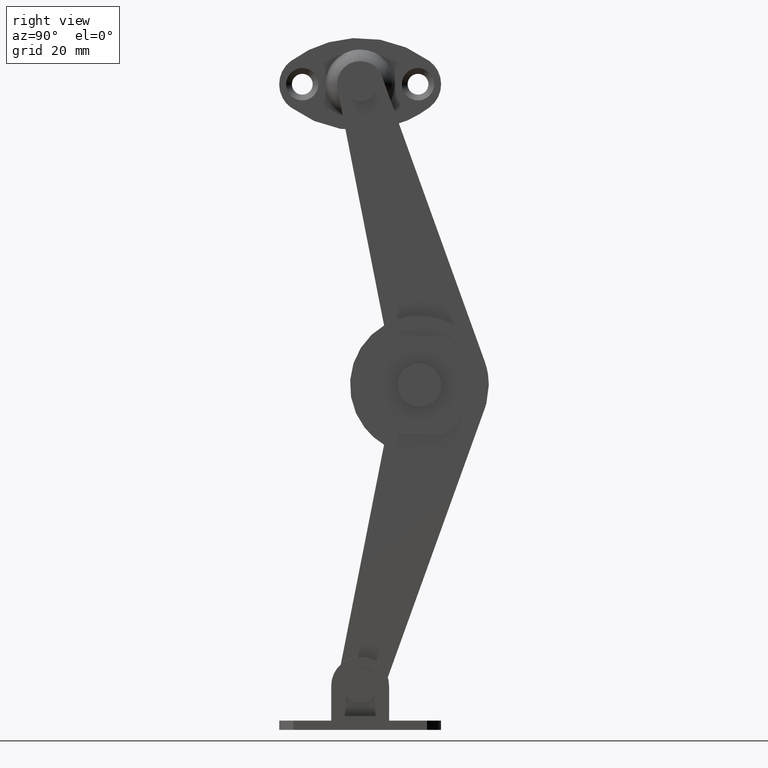
[diagram: clean part render]
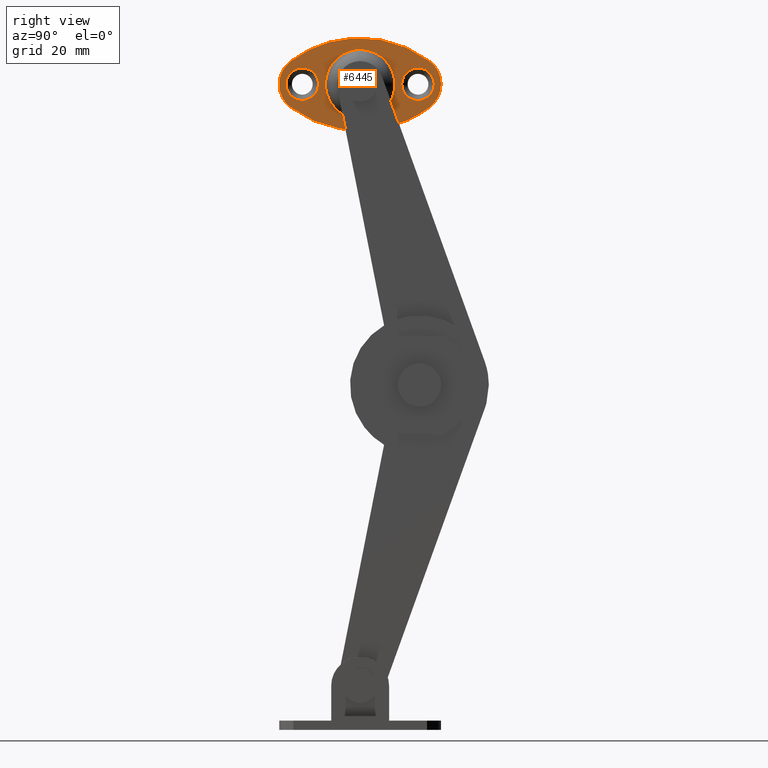
[diagram: same view with one face highlighted and labeled with its STEP entity id]
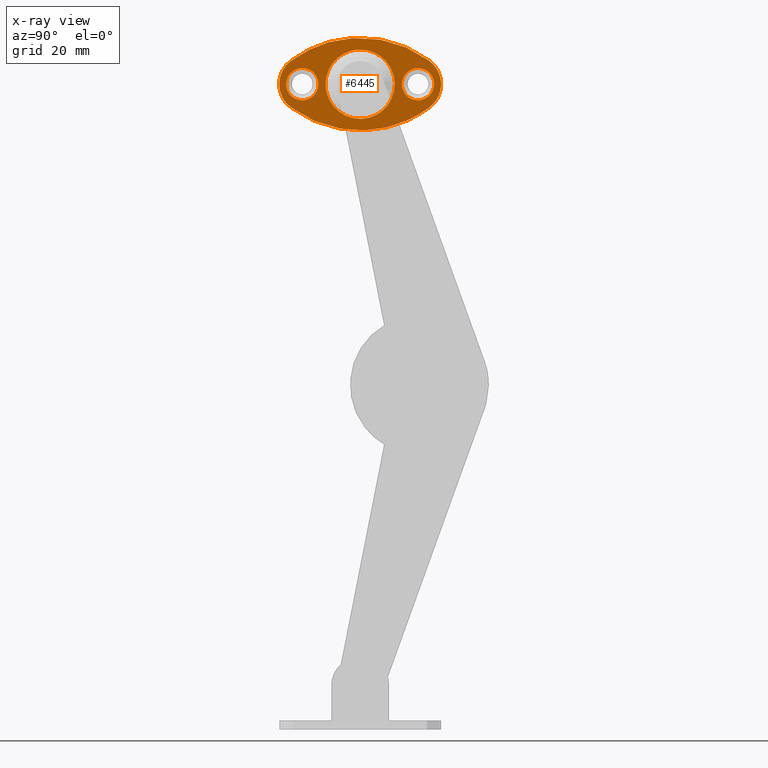
[diagram: x-ray of the same camera — body ghosted, the highlighted face saturated]
A machine part, right view. The second image highlights one B-rep face of the part: STEP entity #6445.
The next image is the same camera in x-ray: the body ghosted, the highlighted face saturated — about 0% of this face is hidden behind the body in this view.
In plain terms, the highlighted face is a freeform B-spline surface patch.
Its self-contained STEP definition (entity closure, byte-faithful):
#4993=CARTESIAN_POINT('',(1.0,10.0,54.799999952317393));
#4994=VERTEX_POINT('',#4993);
#4995=CARTESIAN_POINT('',(0.999999729882660,12.006622107316380,53.952808980272778));
#4996=VERTEX_POINT('',#4995);
#4997=CARTESIAN_POINT('',(1.0,10.0,54.799999952317393));
#4998=CARTESIAN_POINT('',(0.999999965491784,10.256351383295341,54.800089009134318));
#4999=CARTESIAN_POINT('',(0.999999905895884,10.699071718472890,54.738749488145260));
#5000=CARTESIAN_POINT('',(0.999999812000376,11.396593825598480,54.464598641916901));
#5001=CARTESIAN_POINT('',(0.999999758310290,11.795441601950960,54.170061526499438));
#5002=CARTESIAN_POINT('',(0.999999729882660,12.006622107316380,53.952808980272778));
#5003=B_SPLINE_CURVE_WITH_KNOTS('',3,(#4997,#4998,#4999,#5000,#5001,#5002),.UNSPECIFIED.,.F.,.U.,(4,1,1,4),(0.000000033201354,0.769054566016998,1.328343071309611,2.237225403814344),.UNSPECIFIED.);
#5004=EDGE_CURVE('',#4994,#4996,#5003,.T.);
#5006=CARTESIAN_POINT('',(1.0,7.200000047684549,52.000002161737832));
#5007=VERTEX_POINT('',#5006);
#5008=CARTESIAN_POINT('',(1.0,7.200000047684549,52.000002161737832));
#5009=CARTESIAN_POINT('',(1.000000000000001,7.199813732101285,52.297824287974983));
#5010=CARTESIAN_POINT('',(0.999999999999999,7.273828091471584,52.755849531651663));
#5011=CARTESIAN_POINT('',(1.000000000000002,7.536550549190006,53.368704649480648));
#5012=CARTESIAN_POINT('',(1.0,7.849461397124184,53.824812894777182));
#5013=CARTESIAN_POINT('',(1.000000000000000,8.266239377213303,54.221603788594862));
#5014=CARTESIAN_POINT('',(0.999999999999996,8.694073725410227,54.492505232388517));
#5015=CARTESIAN_POINT('',(1.000000000000006,9.267052818998709,54.729871628683831));
#5016=CARTESIAN_POINT('',(0.999999999999995,9.702178055609000,54.800187978241233));
#5017=CARTESIAN_POINT('',(1.0,10.0,54.799999952317393));
#5018=B_SPLINE_CURVE_WITH_KNOTS('',3,(#5008,#5009,#5010,#5011,#5012,#5013,#5014,#5015,#5016,#5017),.UNSPECIFIED.,.F.,.U.,(4,1,1,1,1,1,1,4),(0.000000114808993,0.893405426043538,1.374484031042865,1.993025678736508,2.542756001269111,3.092575548014516,3.504932693660825,4.398338790815406),.UNSPECIFIED.);
#5019=EDGE_CURVE('',#5007,#4994,#5018,.T.);
#5021=CARTESIAN_POINT('',(1.0,10.0,49.200000047684817));
#5022=VERTEX_POINT('',#5021);
#5023=CARTESIAN_POINT('',(1.0,10.0,49.200000047684817));
#5024=CARTESIAN_POINT('',(1.0,9.633411977620982,49.199613423755423));
#5025=CARTESIAN_POINT('',(1.0,9.061035451577819,49.314105610786832));
#5026=CARTESIAN_POINT('',(1.000000000000000,8.435151471635736,49.658770486710367));
#5027=CARTESIAN_POINT('',(1.000000000000000,7.991232511961409,50.023035415262463));
#5028=CARTESIAN_POINT('',(1.0,7.639847687652701,50.451211501812963));
#5029=CARTESIAN_POINT('',(1.000000000000002,7.298271605136465,51.129713467380860));
#5030=CARTESIAN_POINT('',(0.999999999999995,7.199684697126517,51.656333569963117));
#5031=CARTESIAN_POINT('',(1.0,7.200000047684549,52.000002161737832));
#5032=B_SPLINE_CURVE_WITH_KNOTS('',3,(#5023,#5024,#5025,#5026,#5027,#5028,#5029,#5030,#5031),.UNSPECIFIED.,.F.,.U.,(4,1,1,1,1,1,4),(0.000000111835281,1.099585657167975,1.718130212328457,2.130458768806154,2.817672066700567,3.367483413613675,4.398341227657427),.UNSPECIFIED.);
#5033=EDGE_CURVE('',#5022,#5007,#5032,.T.);
#5035=CARTESIAN_POINT('',(1.000000269188763,12.064377103311120,50.108346905306448));
#5036=VERTEX_POINT('',#5035);
#5037=CARTESIAN_POINT('',(1.000000269188763,12.064377103311120,50.108346905306448));
#5038=CARTESIAN_POINT('',(1.000000241515706,11.852155669213470,49.876408165705129));
#5039=CARTESIAN_POINT('',(1.000000188461522,11.445289346396789,49.560727242085058));
#5040=CARTESIAN_POINT('',(1.000000094583465,10.725349525722059,49.265981524277308));
#5041=CARTESIAN_POINT('',(1.000000034685003,10.265995220408779,49.199893179701739));
#5042=CARTESIAN_POINT('',(1.0,10.0,49.200000047684817));
#5043=B_SPLINE_CURVE_WITH_KNOTS('',3,(#5037,#5038,#5039,#5040,#5041,#5042),.UNSPECIFIED.,.F.,.U.,(4,1,1,4),(0.000000039804902,0.943060332312562,1.523378704162258,2.321353100420000),.UNSPECIFIED.);
#5044=EDGE_CURVE('',#5036,#5022,#5043,.T.);
#5124=CARTESIAN_POINT('',(1.0,12.799999952315449,51.999997838264370));
#5125=VERTEX_POINT('',#5124);
#5126=CARTESIAN_POINT('',(0.999999729882660,12.006622107316380,53.952808980272778));
#5127=CARTESIAN_POINT('',(0.999999758881369,12.210821435374539,53.743162949602713));
#5128=CARTESIAN_POINT('',(0.999999818111430,12.513087585151840,53.314959627809323));
#5129=CARTESIAN_POINT('',(0.999999912815762,12.753392748559641,52.630295401476843));
#5130=CARTESIAN_POINT('',(0.999999971975829,12.800028078475179,52.202598312295812));
#5131=CARTESIAN_POINT('',(1.0,12.799999952315449,51.999997838264370));
#5132=B_SPLINE_CURVE_WITH_KNOTS('',3,(#5126,#5127,#5128,#5129,#5130,#5131),.UNSPECIFIED.,.F.,.U.,(4,1,1,4),(0.000000044936330,0.877968733131726,1.553301260825916,2.161116228894698),.UNSPECIFIED.);
#5133=EDGE_CURVE('',#4996,#5125,#5132,.T.);
#5155=CARTESIAN_POINT('',(1.0,12.799999952315449,51.999997838264370));
#5156=CARTESIAN_POINT('',(1.000000046185221,12.800215393119570,51.675443633176933));
#5157=CARTESIAN_POINT('',(1.000000144676949,12.678234256935580,50.983319648376288));
#5158=CARTESIAN_POINT('',(1.000000230634516,12.313191777251870,50.379276303755539));
#5159=CARTESIAN_POINT('',(1.000000269188763,12.064377103311120,50.108346905306448));
#5160=B_SPLINE_CURVE_WITH_KNOTS('',3,(#5155,#5156,#5157,#5158,#5159),.UNSPECIFIED.,.F.,.U.,(4,1,4),(0.000000036915672,0.973596183959582,2.076986401531397),.UNSPECIFIED.);
#5161=EDGE_CURVE('',#5125,#5036,#5160,.T.);
#5192=CARTESIAN_POINT('',(1.0,-10.0,54.799999952317393));
#5193=VERTEX_POINT('',#5192);
#5194=CARTESIAN_POINT('',(0.999999729882660,-7.993377892683615,53.952808980272778));
#5195=VERTEX_POINT('',#5194);
#5196=CARTESIAN_POINT('',(1.0,-10.0,54.799999952317393));
#5197=CARTESIAN_POINT('',(0.999999965491397,-9.743645753518518,54.800092475108443));
#5198=CARTESIAN_POINT('',(0.999999905896046,-9.300929471926887,54.738747800241633));
#5199=CARTESIAN_POINT('',(0.999999812001733,-8.603416271029991,54.464585162882280));
#5200=CARTESIAN_POINT('',(0.999999758308385,-8.204544249009057,54.170078799438841));
#5201=CARTESIAN_POINT('',(0.999999729882660,-7.993377892683615,53.952808980272778));
#5202=B_SPLINE_CURVE_WITH_KNOTS('',3,(#5196,#5197,#5198,#5199,#5200,#5201),.UNSPECIFIED.,.F.,.U.,(4,1,1,4),(0.000000033200785,0.769054566016562,1.328343071309361,2.237225403814346),.UNSPECIFIED.);
#5203=EDGE_CURVE('',#5193,#5195,#5202,.T.);
#5205=CARTESIAN_POINT('',(1.0,-12.799999952315449,52.000002161737832));
#5206=VERTEX_POINT('',#5205);
#5207=CARTESIAN_POINT('',(1.0,-12.799999952315449,52.000002161737832));
#5208=CARTESIAN_POINT('',(1.0,-12.800383615412359,52.366588509371773));
#5209=CARTESIAN_POINT('',(1.000000000000000,-12.685899456023890,52.938968361343193));
#5210=CARTESIAN_POINT('',(1.0,-12.341213138925680,53.564830145417140));
#5211=CARTESIAN_POINT('',(1.000000000000003,-11.918770228803201,54.079913143245250));
#5212=CARTESIAN_POINT('',(0.999999999999996,-11.395988821615930,54.467591368362207));
#5213=CARTESIAN_POINT('',(1.000000000000003,-10.687168230448030,54.740807635182733));
#5214=CARTESIAN_POINT('',(0.999999999999997,-10.251989341167191,54.800085576396469));
#5215=CARTESIAN_POINT('',(1.0,-10.0,54.799999952317393));
#5216=B_SPLINE_CURVE_WITH_KNOTS('',3,(#5207,#5208,#5209,#5210,#5211,#5212,#5213,#5214,#5215),.UNSPECIFIED.,.F.,.U.,(4,1,1,1,1,1,4),(0.000000114802290,1.099585050436312,1.718129262531388,2.130457594273934,3.092575548012642,3.642375830379818,4.398338790815513),.UNSPECIFIED.);
#5217=EDGE_CURVE('',#5206,#5193,#5216,.T.);
#5219=CARTESIAN_POINT('',(1.0,-10.0,49.200000047684817));
#5220=VERTEX_POINT('',#5219);
#5221=CARTESIAN_POINT('',(1.0,-10.0,49.200000047684817));
#5222=CARTESIAN_POINT('',(1.0,-10.297806505196080,49.199839132909759));
#5223=CARTESIAN_POINT('',(1.0,-10.824601101163189,49.284857860034641));
#5224=CARTESIAN_POINT('',(1.000000000000000,-11.471349940911360,49.590839155363533));
#5225=CARTESIAN_POINT('',(1.000000000000001,-12.052181906098941,50.043912910477303));
#5226=CARTESIAN_POINT('',(1.000000000000003,-12.467605931238610,50.604002178778821));
#5227=CARTESIAN_POINT('',(0.999999999999998,-12.740806366055160,51.312834247379463));
#5228=CARTESIAN_POINT('',(1.0,-12.800085235442520,51.748012782083698));
#5229=CARTESIAN_POINT('',(1.0,-12.799999952315449,52.000002161737832));
#5230=B_SPLINE_CURVE_WITH_KNOTS('',3,(#5221,#5222,#5223,#5224,#5225,#5226,#5227,#5228,#5229),.UNSPECIFIED.,.F.,.U.,(4,1,1,1,1,1,4),(0.000000111833795,0.893405918399436,1.580670332862152,2.130458768805262,3.092577260842618,3.642377849415184,4.398341227657443),.UNSPECIFIED.);
#5231=EDGE_CURVE('',#5220,#5206,#5230,.T.);
#5233=CARTESIAN_POINT('',(1.000000269188762,-7.935622896688879,50.108346905306448));
#5234=VERTEX_POINT('',#5233);
#5235=CARTESIAN_POINT('',(1.000000269188762,-7.935622896688879,50.108346905306448));
#5236=CARTESIAN_POINT('',(1.000000241515562,-8.147845422857543,49.876406716039050));
#5237=CARTESIAN_POINT('',(1.000000188461730,-8.554709062317436,49.560728461653817));
#5238=CARTESIAN_POINT('',(1.000000094583277,-9.274651908446421,49.265980369599511));
#5239=CARTESIAN_POINT('',(1.000000034685065,-9.734004321335432,49.199893231637290));
#5240=CARTESIAN_POINT('',(1.0,-10.0,49.200000047684817));
#5241=B_SPLINE_CURVE_WITH_KNOTS('',3,(#5235,#5236,#5237,#5238,#5239,#5240),.UNSPECIFIED.,.F.,.U.,(4,1,1,4),(0.000000039805514,0.943060332313149,1.523378704162653,2.321353100419961),.UNSPECIFIED.);
#5242=EDGE_CURVE('',#5234,#5220,#5241,.T.);
#5319=CARTESIAN_POINT('',(1.0,-7.200000047684548,51.999997838264377));
#5320=VERTEX_POINT('',#5319);
#5321=CARTESIAN_POINT('',(0.999999729882660,-7.993377892683615,53.952808980272778));
#5322=CARTESIAN_POINT('',(0.999999754423022,-7.820613818175894,53.775394526892249));
#5323=CARTESIAN_POINT('',(0.999999797291736,-7.590448194288380,53.465475486672638));
#5324=CARTESIAN_POINT('',(0.999999887926865,-7.286586559107685,52.810229435336737));
#5325=CARTESIAN_POINT('',(0.999999953284957,-7.199698716946488,52.337723787513951));
#5326=CARTESIAN_POINT('',(1.0,-7.200000047684548,51.999997838264377));
#5327=B_SPLINE_CURVE_WITH_KNOTS('',3,(#5321,#5322,#5323,#5324,#5325,#5326),.UNSPECIFIED.,.F.,.U.,(4,1,1,4),(0.000000044934469,0.742892614533713,1.148083143996637,2.161116228894692),.UNSPECIFIED.);
#5328=EDGE_CURVE('',#5195,#5320,#5327,.T.);
#5350=CARTESIAN_POINT('',(1.0,-7.200000047684548,51.999997838264377));
#5351=CARTESIAN_POINT('',(1.000000046185123,-7.199784299275146,51.675444313130313));
#5352=CARTESIAN_POINT('',(1.000000144677052,-7.321766679799279,50.983318938778957));
#5353=CARTESIAN_POINT('',(1.000000230634461,-7.686807744445328,50.379276670580147));
#5354=CARTESIAN_POINT('',(1.000000269188762,-7.935622896688879,50.108346905306448));
#5355=B_SPLINE_CURVE_WITH_KNOTS('',3,(#5350,#5351,#5352,#5353,#5354),.UNSPECIFIED.,.F.,.U.,(4,1,4),(0.000000036915338,0.973596183959523,2.076986401531408),.UNSPECIFIED.);
#5356=EDGE_CURVE('',#5320,#5234,#5355,.T.);
#6115=CARTESIAN_POINT('',(0.999999999999972,-5.999999999999809,52.000001514960211));
#6116=VERTEX_POINT('',#6115);
#6117=CARTESIAN_POINT('',(0.999999999999972,0.0,58.000000000001101));
#6118=VERTEX_POINT('',#6117);
#6119=CARTESIAN_POINT('',(0.999999999999972,-5.999999999999809,52.000001514960211));
#6120=CARTESIAN_POINT('',(0.999999999999974,-6.000343152366956,52.638190480595867));
#6121=CARTESIAN_POINT('',(0.999999999999972,-5.837869394285058,53.644217421497522));
#6122=CARTESIAN_POINT('',(0.999999999999972,-5.236979789602057,55.022497996128642));
#6123=CARTESIAN_POINT('',(0.999999999999973,-4.425858333207565,56.144904047948721));
#6124=CARTESIAN_POINT('',(0.999999999999968,-3.302805568624171,57.078094730361038));
#6125=CARTESIAN_POINT('',(0.999999999999988,-2.215370432423190,57.608709168560033));
#6126=CARTESIAN_POINT('',(0.999999999999909,-1.128970918957071,57.923740002544768));
#6127=CARTESIAN_POINT('',(1.000000000000063,-0.441791650375527,58.000075284019893));
#6128=CARTESIAN_POINT('',(0.999999999999972,0.0,58.000000000001101));
#6129=B_SPLINE_CURVE_WITH_KNOTS('',3,(#6119,#6120,#6121,#6122,#6123,#6124,#6125,#6126,#6127,#6128),.UNSPECIFIED.,.F.,.U.,(4,1,1,1,1,1,1,4),(0.000000141837093,1.914418379020531,3.018902503477506,4.491526945265907,6.037777634609078,7.363159680453876,8.099476798630702,9.424836243400998),.UNSPECIFIED.);
#6130=EDGE_CURVE('',#6116,#6118,#6129,.T.);
#6132=CARTESIAN_POINT('',(0.999999999999972,0.0,46.000000000001101));
#6133=VERTEX_POINT('',#6132);
#6134=CARTESIAN_POINT('',(0.999999999999972,0.0,46.000000000001101));
#6135=CARTESIAN_POINT('',(0.999999999999972,-0.319056636371326,45.999989664231727));
#6136=CARTESIAN_POINT('',(0.999999999999973,-1.030830939264542,46.056865104362352));
#6137=CARTESIAN_POINT('',(0.999999999999972,-2.008581115117666,46.314578408832872));
#6138=CARTESIAN_POINT('',(0.999999999999972,-2.970718407904738,46.755293016315562));
#6139=CARTESIAN_POINT('',(0.999999999999974,-3.909612188118139,47.390893812997753));
#6140=CARTESIAN_POINT('',(0.999999999999972,-4.749869795622704,48.262707265061849));
#6141=CARTESIAN_POINT('',(0.999999999999973,-5.402762215392508,49.307950231327133));
#6142=CARTESIAN_POINT('',(0.999999999999972,-5.873215367617747,50.527468417454330));
#6143=CARTESIAN_POINT('',(0.999999999999972,-6.000181861464442,51.460026585596829));
#6144=CARTESIAN_POINT('',(0.999999999999972,-5.999999999999809,52.000001514960211));
#6145=B_SPLINE_CURVE_WITH_KNOTS('',3,(#6134,#6135,#6136,#6137,#6138,#6139,#6140,#6141,#6142,#6143,#6144),.UNSPECIFIED.,.F.,.U.,(4,1,1,1,1,1,1,1,4),(0.000000141337527,0.957179876773781,2.135315001357613,3.018903050273585,4.123401551765872,5.522336582041319,6.626835407690157,7.804960623305535,9.424837951123516),.UNSPECIFIED.);
#6146=EDGE_CURVE('',#6133,#6116,#6145,.T.);
#6148=CARTESIAN_POINT('',(0.999999999999972,5.999999999999808,51.999998485042042));
#6149=VERTEX_POINT('',#6148);
#6150=CARTESIAN_POINT('',(0.999999999999972,5.999999999999808,51.999998485042042));
#6151=CARTESIAN_POINT('',(0.999999999999973,6.000391279871470,51.361794542272101));
#6152=CARTESIAN_POINT('',(0.999999999999970,5.861613098250833,50.503030548177108));
#6153=CARTESIAN_POINT('',(0.999999999999974,5.367326440276737,49.244612673363960));
#6154=CARTESIAN_POINT('',(0.999999999999970,4.796554107785431,48.318290788536807));
#6155=CARTESIAN_POINT('',(0.999999999999973,3.992528812810899,47.484279278020338));
#6156=CARTESIAN_POINT('',(0.999999999999971,3.103026018562772,46.824537191201287));
#6157=CARTESIAN_POINT('',(0.999999999999977,1.815965908525832,46.196154669052412));
#6158=CARTESIAN_POINT('',(0.999999999999967,0.687284740148552,45.999538923250121));
#6159=CARTESIAN_POINT('',(0.999999999999972,0.0,46.000000000001101));
#6160=B_SPLINE_CURVE_WITH_KNOTS('',3,(#6150,#6151,#6152,#6153,#6154,#6155,#6156,#6157,#6158,#6159),.UNSPECIFIED.,.F.,.U.,(4,1,1,1,1,1,1,4),(0.000000141890233,1.914418379062577,2.577105607706663,4.049737069521163,5.154205069482948,6.037777634627760,7.363159680465028,9.424836243400817),.UNSPECIFIED.);
#6161=EDGE_CURVE('',#6149,#6133,#6160,.T.);
#6163=CARTESIAN_POINT('',(0.999999999999972,0.0,58.000000000001101));
#6164=CARTESIAN_POINT('',(0.999999999999982,0.539983049815428,58.000190266085887));
#6165=CARTESIAN_POINT('',(0.999999999999965,1.349804135858053,57.889880658563897));
#6166=CARTESIAN_POINT('',(0.999999999999979,2.510431734930756,57.482609927089591));
#6167=CARTESIAN_POINT('',(0.999999999999967,3.544699357456961,56.905186835796172));
#6168=CARTESIAN_POINT('',(0.999999999999975,4.442472755226326,56.091418317945113));
#6169=CARTESIAN_POINT('',(0.999999999999966,5.175492498287698,55.103026122921243));
#6170=CARTESIAN_POINT('',(0.999999999999966,5.608718370765851,54.215376790775871));
#6171=CARTESIAN_POINT('',(0.999999999999970,5.923741178420666,53.128969407136182));
#6172=CARTESIAN_POINT('',(0.999999999999969,6.000074635949011,52.441790115228791));
#6173=CARTESIAN_POINT('',(0.999999999999972,5.999999999999808,51.999998485042042));
#6174=B_SPLINE_CURVE_WITH_KNOTS('',3,(#6163,#6164,#6165,#6166,#6167,#6168,#6169,#6170,#6171,#6172,#6173),.UNSPECIFIED.,.F.,.U.,(4,1,1,1,1,1,1,1,4),(0.000000141347895,1.619878093975062,2.429842759999850,3.681602614127336,5.154206005520796,6.037778727408057,7.363161015051376,8.099478265515733,9.424837951123482),.UNSPECIFIED.);
#6175=EDGE_CURVE('',#6118,#6149,#6174,.T.);
#6200=CARTESIAN_POINT('',(1.0,-12.000000000008040,48.000000000007212));
#6201=VERTEX_POINT('',#6200);
#6202=CARTESIAN_POINT('',(1.0,12.000000000008260,48.000000000007212));
#6203=VERTEX_POINT('',#6202);
#6204=CARTESIAN_POINT('',(1.0,-12.000000000008040,48.000000000007212));
#6205=CARTESIAN_POINT('',(1.0,-11.088426556505500,47.316210794083503));
#6206=CARTESIAN_POINT('',(1.0,-9.205036045550372,46.140729497946502));
#6207=CARTESIAN_POINT('',(1.000000000000001,-5.911429849573501,44.778515187132058));
#6208=CARTESIAN_POINT('',(0.999999999999998,-2.683596102254183,44.086604599142262));
#6209=CARTESIAN_POINT('',(1.000000000000001,0.067780811913573,43.962257048416127));
#6210=CARTESIAN_POINT('',(0.999999999999989,2.411501678364521,44.103785780035601));
#6211=CARTESIAN_POINT('',(1.000000000000036,4.662923989179899,44.492387262648911));
#6212=CARTESIAN_POINT('',(0.999999999999984,6.971293794373435,45.210647547308589));
#6213=CARTESIAN_POINT('',(1.000000000000008,9.431046890831727,46.286275695645358));
#6214=CARTESIAN_POINT('',(1.000000000000004,11.034821353400410,47.275951503896749));
#6215=CARTESIAN_POINT('',(1.0,12.000000000008260,48.000000000007212));
#6216=B_SPLINE_CURVE_WITH_KNOTS('',3,(#6204,#6205,#6206,#6207,#6208,#6209,#6210,#6211,#6212,#6213,#6214,#6215),.UNSPECIFIED.,.F.,.U.,(4,1,1,1,1,1,1,1,1,4),(5.715030E-009,3.418595140858905,6.636134726326720,10.658033322184860,13.272266214495120,14.881019377277070,17.696345648302980,20.109499637533769,22.120455294912599,25.740152774507472),.UNSPECIFIED.);
#6217=EDGE_CURVE('',#6201,#6203,#6216,.T.);
#6265=CARTESIAN_POINT('',(1.0,-12.000000000008120,55.999999999994998));
#6266=VERTEX_POINT('',#6265);
#6267=CARTESIAN_POINT('',(1.0,-12.000000000008120,55.999999999994998));
#6268=CARTESIAN_POINT('',(1.000000000000000,-12.270482231585030,55.797185142847027));
#6269=CARTESIAN_POINT('',(1.0,-12.787943126395760,55.319971253238023));
#6270=CARTESIAN_POINT('',(1.000000000000000,-13.349149924621310,54.526788793745311));
#6271=CARTESIAN_POINT('',(0.999999999999996,-13.770925410644880,53.600857392306096));
#6272=CARTESIAN_POINT('',(1.000000000000002,-14.011178725815860,52.583463120041841));
#6273=CARTESIAN_POINT('',(1.000000000000000,-14.011106300900749,51.586737086750858));
#6274=CARTESIAN_POINT('',(0.999999999999999,-13.832389059898560,50.610754658131903));
#6275=CARTESIAN_POINT('',(1.000000000000000,-13.522277125279951,49.792361568815807));
#6276=CARTESIAN_POINT('',(1.0,-12.919535115534821,48.826349986498990));
#6277=CARTESIAN_POINT('',(1.000000000000000,-12.386510423764360,48.289635174033073));
#6278=CARTESIAN_POINT('',(1.0,-12.000000000008040,48.000000000007212));
#6279=B_SPLINE_CURVE_WITH_KNOTS('',3,(#6267,#6268,#6269,#6270,#6271,#6272,#6273,#6274,#6275,#6276,#6277,#6278),.UNSPECIFIED.,.F.,.U.,(4,1,1,1,1,1,1,1,1,4),(0.000000195420681,1.014230999473943,2.100917103900425,2.897838765379888,4.056959344525509,5.216063196917700,5.868064965091396,7.027221908719686,7.824144939122924,9.273033285289326),.UNSPECIFIED.);
#6280=EDGE_CURVE('',#6266,#6201,#6279,.T.);
#6322=CARTESIAN_POINT('',(1.0,12.000000000008260,55.999999999994898));
#6323=VERTEX_POINT('',#6322);
#6324=CARTESIAN_POINT('',(1.0,12.000000000008260,55.999999999994898));
#6325=CARTESIAN_POINT('',(1.000000000000001,11.088432592391049,56.683799527100007));
#6326=CARTESIAN_POINT('',(0.999999999999999,9.205030395218108,57.859270519646827));
#6327=CARTESIAN_POINT('',(1.000000000000001,6.408562549322562,59.015787371530152));
#6328=CARTESIAN_POINT('',(1.0,3.871851802371689,59.667123272882762));
#6329=CARTESIAN_POINT('',(0.999999999999997,1.144685063251216,60.039716218973773));
#6330=CARTESIAN_POINT('',(1.000000000000001,-1.749312417172127,60.010589715298053));
#6331=CARTESIAN_POINT('',(1.000000000000001,-5.192718516760722,59.416286657936190));
#6332=CARTESIAN_POINT('',(0.999999999999994,-8.620202972471208,58.196680068289069));
#6333=CARTESIAN_POINT('',(1.000000000000007,-10.927583448372440,56.804494526721257));
#6334=CARTESIAN_POINT('',(1.0,-12.000000000008120,55.999999999994998));
#6335=B_SPLINE_CURVE_WITH_KNOTS('',3,(#6324,#6325,#6326,#6327,#6328,#6329,#6330,#6331,#6332,#6333,#6334),.UNSPECIFIED.,.F.,.U.,(4,1,1,1,1,1,1,1,4),(5.717769E-009,3.418595140861658,6.636134726329328,9.049279102882004,11.261318142588880,14.881019377278619,17.696345648304170,21.718265321252598,25.740152774507500),.UNSPECIFIED.);
#6336=EDGE_CURVE('',#6323,#6266,#6335,.T.);
#6377=CARTESIAN_POINT('',(1.0,12.000000000008260,48.000000000007212));
#6378=CARTESIAN_POINT('',(1.000000000000001,12.328465324523190,48.246244455414200));
#6379=CARTESIAN_POINT('',(0.999999999999999,12.959349554315031,48.853980009823843));
#6380=CARTESIAN_POINT('',(1.000000000000002,13.551686347575121,49.834705804418398));
#6381=CARTESIAN_POINT('',(0.999999999999997,13.908492062207699,50.890449120944261));
#6382=CARTESIAN_POINT('',(1.000000000000006,14.038155814956470,51.878704643454263));
#6383=CARTESIAN_POINT('',(0.999999999999994,13.951662768886630,52.870115964206732));
#6384=CARTESIAN_POINT('',(1.000000000000006,13.714271609028239,53.734425025997410));
#6385=CARTESIAN_POINT('',(0.999999999999997,13.326412229617199,54.569930073099613));
#6386=CARTESIAN_POINT('',(1.000000000000003,12.753746430664270,55.354881403386720));
#6387=CARTESIAN_POINT('',(0.999999999999999,12.251147062386750,55.811669400575262));
#6388=CARTESIAN_POINT('',(1.0,12.000000000008260,55.999999999994898));
#6389=B_SPLINE_CURVE_WITH_KNOTS('',3,(#6377,#6378,#6379,#6380,#6381,#6382,#6383,#6384,#6385,#6386,#6387,#6388),.UNSPECIFIED.,.F.,.U.,(4,1,1,1,1,1,1,1,1,4),(0.000000195431602,1.231570262734997,2.608048938491381,3.404970401332595,4.564110979809583,5.578273506450481,6.375196608213740,7.244561556173112,8.331276527899648,9.273033285289287),.UNSPECIFIED.);
#6390=EDGE_CURVE('',#6203,#6323,#6389,.T.);
#6412=CARTESIAN_POINT('',(0.999999999999972,-15.398569830467579,60.799136156748453));
#6413=CARTESIAN_POINT('',(0.999999999999972,15.398618145992859,60.799136156748453));
#6414=CARTESIAN_POINT('',(0.999999999999972,-15.398569830467579,43.200799041083883));
#6415=CARTESIAN_POINT('',(0.999999999999972,15.398618145992859,43.200799041083883));
#6416=B_SPLINE_SURFACE_WITH_KNOTS('',1,1,((#6412,#6414),(#6413,#6415)),.UNSPECIFIED.,.F.,.F.,.U.,(2,2),(2,2),(0.0,30.797187976460439),(0.0,17.598337115664570),.UNSPECIFIED.);
#6417=ORIENTED_EDGE('',*,*,#6217,.T.);
#6418=ORIENTED_EDGE('',*,*,#6390,.T.);
#6419=ORIENTED_EDGE('',*,*,#6336,.T.);
#6420=ORIENTED_EDGE('',*,*,#6280,.T.);
#6421=EDGE_LOOP('',(#6417,#6418,#6419,#6420));
#6422=FACE_OUTER_BOUND('',#6421,.T.);
#6423=ORIENTED_EDGE('',*,*,#5231,.T.);
#6424=ORIENTED_EDGE('',*,*,#5217,.T.);
#6425=ORIENTED_EDGE('',*,*,#5203,.T.);
#6426=ORIENTED_EDGE('',*,*,#5328,.T.);
#6427=ORIENTED_EDGE('',*,*,#5356,.T.);
#6428=ORIENTED_EDGE('',*,*,#5242,.T.);
#6429=EDGE_LOOP('',(#6423,#6424,#6425,#6426,#6427,#6428));
#6430=FACE_BOUND('',#6429,.T.);
#6431=ORIENTED_EDGE('',*,*,#5033,.T.);
#6432=ORIENTED_EDGE('',*,*,#5019,.T.);
#6433=ORIENTED_EDGE('',*,*,#5004,.T.);
#6434=ORIENTED_EDGE('',*,*,#5133,.T.);
#6435=ORIENTED_EDGE('',*,*,#5161,.T.);
#6436=ORIENTED_EDGE('',*,*,#5044,.T.);
#6437=EDGE_LOOP('',(#6431,#6432,#6433,#6434,#6435,#6436));
#6438=FACE_BOUND('',#6437,.T.);
#6439=ORIENTED_EDGE('',*,*,#6175,.T.);
#6440=ORIENTED_EDGE('',*,*,#6161,.T.);
#6441=ORIENTED_EDGE('',*,*,#6146,.T.);
#6442=ORIENTED_EDGE('',*,*,#6130,.T.);
#6443=EDGE_LOOP('',(#6439,#6440,#6441,#6442));
#6444=FACE_BOUND('',#6443,.T.);
#6445=ADVANCED_FACE('',(#6422,#6430,#6438,#6444),#6416,.F.);